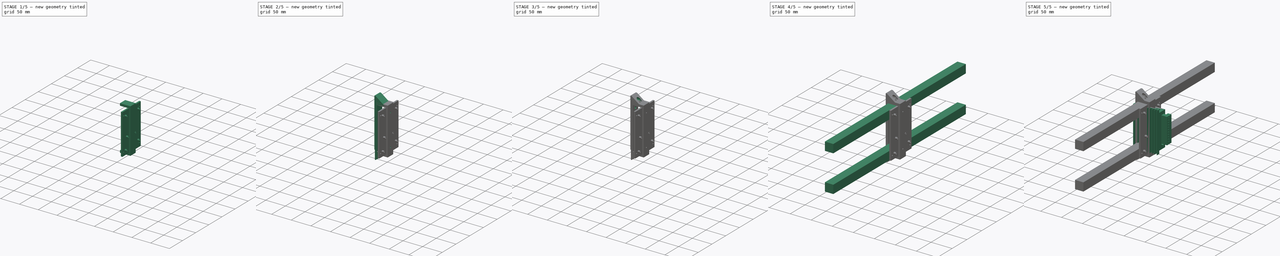
[diagram: build sequence overview — one tinted view per stage of 5, left to right]
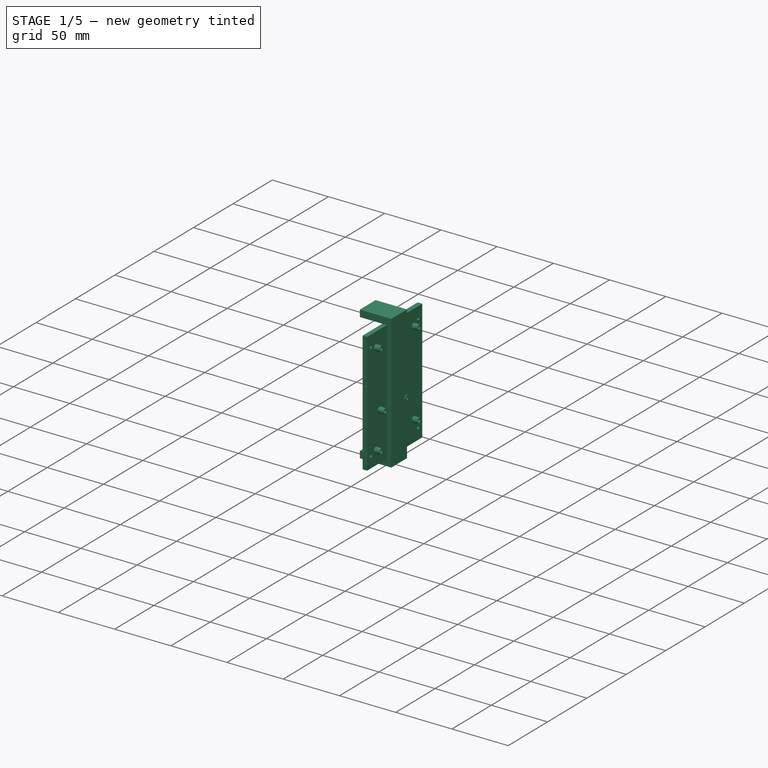
[diagram: stage 1 of 5 — iso view after this stage's code; geometry added in this stage tinted green]
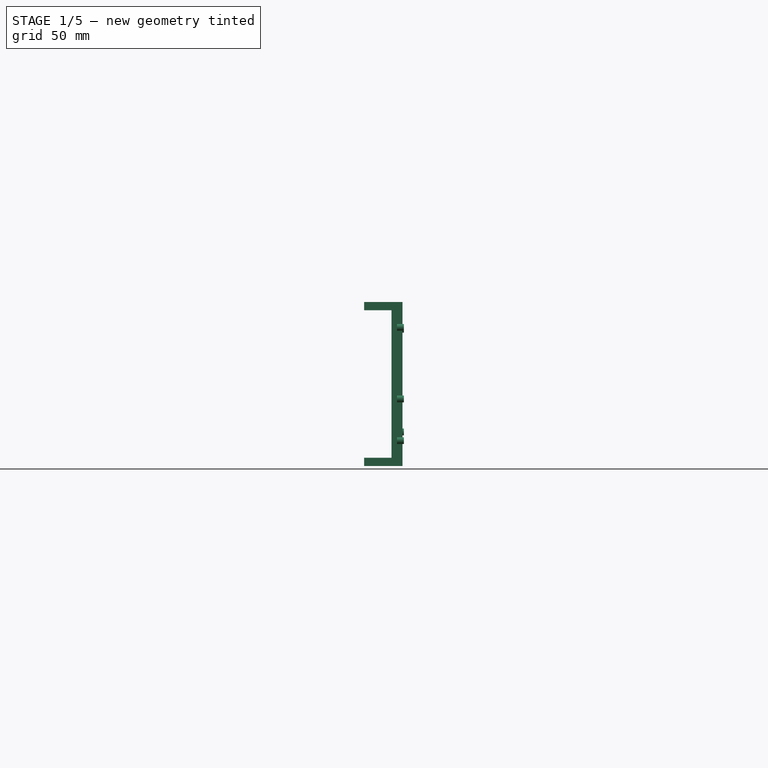
[diagram: stage 1 of 5 — front view after this stage's code; geometry added in this stage tinted green]
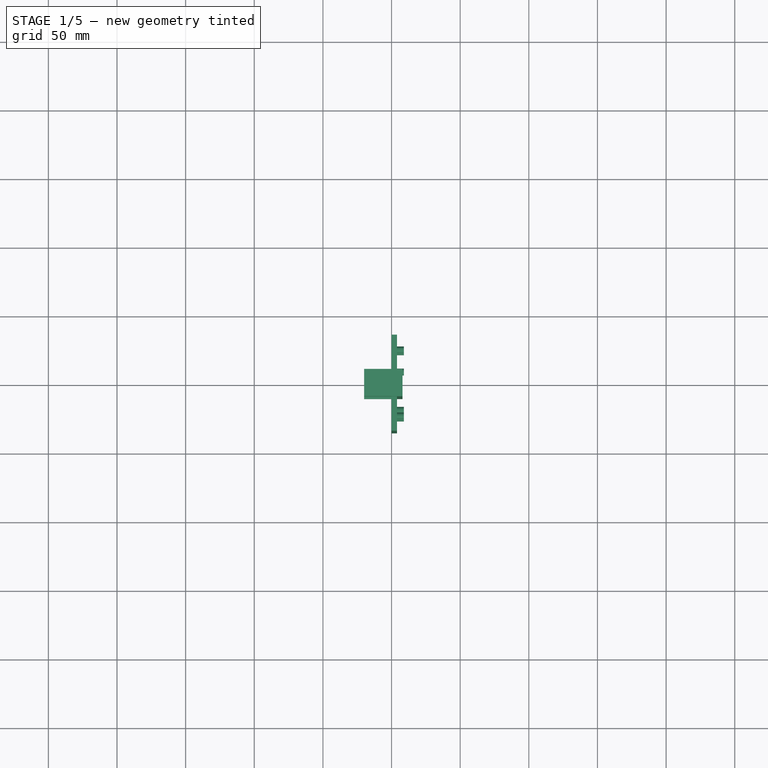
[diagram: stage 1 of 5 — top view after this stage's code; geometry added in this stage tinted green]
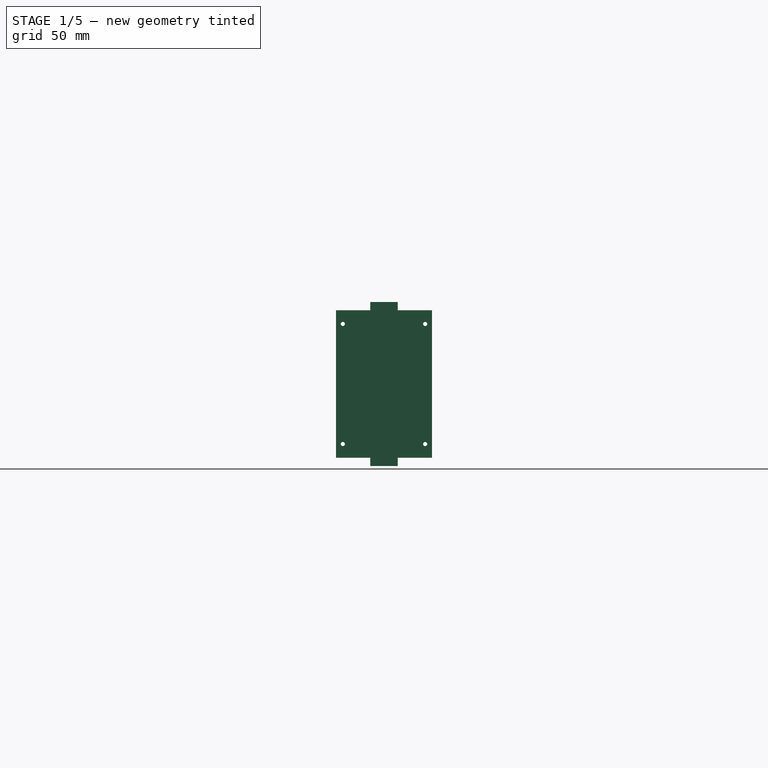
[diagram: stage 1 of 5 — right view after this stage's code; geometry added in this stage tinted green]
FCSTD DOCUMENT  (FreeCAD 0.19R23141 (Git))
Label: cnc_electronics_asm
License: All rights reserved
LicenseURL: http://en.wikipedia.org/wiki/All_rights_reserved
objects: Sketcher::SketchObject×13, PartDesign::Body×8, PartDesign::Pad×6, PartDesign::Hole×5, Part::Feature×4, PartDesign::FeatureBase×3, App::Part×2, PartDesign::Pocket×2, Part::Compound2×1, PartDesign::Mirrored×1
note: 55 computed .brp shape members not serialized (recipe doc carries the construction recipe); baked Part::Feature solids carry a one-line shape summary decoded from their .brp

FEATURE [PartDesign::Body] Body005  label="Bracket"
  Group = -> [Sketch002,Pad002,Sketch003,Hole,Sketch004,Hole001,Mirrored,Sketch005,Hole002,Sketch006,Hole003]
  Origin = -> Origin007
  Placement = pos=(0,250,0) rot=(0,0,1;0rad)
  Tip = -> Hole003
FEATURE [Sketcher::SketchObject] Sketch007
  MapMode = 5
  Placement = pos=(0,0,0) rot=(1,0,0;1.5708rad)
  Support = -> [XZ_Plane008]
  sketch-geometry (8):
    g0: LineSegment StartX=0 StartY=53.75 StartZ=0 EndX=-20 EndY=53.75 EndZ=0
    g1: LineSegment StartX=-20 StartY=53.75 StartZ=0 EndX=-20 EndY=59.75 EndZ=0
    g2: LineSegment StartX=-20 StartY=59.75 StartZ=0 EndX=8 EndY=59.75 EndZ=0
    g3: LineSegment StartX=8 StartY=59.75 StartZ=0 EndX=8 EndY=-59.75 EndZ=0
    g4: LineSegment StartX=8 StartY=-59.75 StartZ=0 EndX=-20 EndY=-59.75 EndZ=0
    g5: LineSegment StartX=-20 StartY=-59.75 StartZ=0 EndX=-20 EndY=-53.75 EndZ=0
    g6: LineSegment StartX=-20 StartY=-53.75 StartZ=0 EndX=0 EndY=-53.75 EndZ=0
    g7: LineSegment StartX=0 StartY=-53.75 StartZ=0 EndX=0 EndY=53.75 EndZ=0
  constraints (24):
    c: PointOnObject(g0,g-2)
    c: Horizontal(g0)
    c: Coincident(g0,g1)
    c: Vertical(g1)
    c: Coincident(g1,g2)
    c: Horizontal(g2)
    c: Coincident(g2,g3)
    c: Vertical(g3)
    c: Coincident(g3,g4)
    c: Horizontal(g4)
    c: Coincident(g4,g5)
    c: Vertical(g5)
    c: Coincident(g5,g6)
    c: PointOnObject(g6,g-2)
    c: Coincident(g6,g7)
    c: Coincident(g7,g0)
    c: Horizontal(g6)
    c: Equal(g0,g6)
    c: DistanceX(g6,g6) = 20
    c: Equal(g5,g1)
    c: DistanceY(g1,g1) = 6
    c: DistanceY(g-1,g0) = 53.75
    c: DistanceY(g6,g-1) = 53.75
    c: DistanceX(g6,g3) = 8
FEATURE [PartDesign::Pad] Pad003
  Direction = (1,1,1)
  Length = 20
  Length2 = 100
  Midplane = true
  Placement = pos=(0,0,0) rot=(1,0,0;1.5708rad)
  Profile = -> Sketch007
  Type = 0
FEATURE [PartDesign::Body] Body006  label="PSU_Mount"
  Group = -> [Sketch007,Pad003,Sketch008,Hole004,Sketch009,Pocket]
  Origin = -> Origin008
  Tip = -> Pocket
FEATURE [Sketcher::SketchObject] Sketch010
  MapMode = 5
  Placement = pos=(0,0,0) rot=(0.57735,0.57735,0.57735;2.0944rad)
  Support = -> [YZ_Plane009]
  sketch-geometry (18):
    g0: LineSegment StartX=-35 StartY=53.75 StartZ=0 EndX=35 EndY=53.75 EndZ=0
    g1: LineSegment StartX=35 StartY=53.75 StartZ=0 EndX=35 EndY=-53.75 EndZ=0
    g2: LineSegment StartX=35 StartY=-53.75 StartZ=0 EndX=-35 EndY=-53.75 EndZ=0
    g3: LineSegment StartX=-35 StartY=-53.75 StartZ=0 EndX=-35 EndY=53.75 EndZ=0
    g4: LineSegment [constr] StartX=-35 StartY=53.75 StartZ=0 EndX=0 EndY=0 EndZ=0
    g5: LineSegment [constr] StartX=0 StartY=0 StartZ=0 EndX=35 EndY=53.75 EndZ=0
    g6: LineSegment [constr] StartX=0 StartY=0 StartZ=0 EndX=-35 EndY=-53.75 EndZ=0
    g7: Circle CenterX=-30 CenterY=43.75 CenterZ=0 NormalX=0 NormalY=0 NormalZ=1 AngleXU=0 Radius=1.5
    g8: Circle CenterX=30 CenterY=43.75 CenterZ=0 NormalX=0 NormalY=0 NormalZ=1 AngleXU=0 Radius=1.5
    g9: Circle CenterX=-30 CenterY=-43.75 CenterZ=0 NormalX=0 NormalY=0 NormalZ=1 AngleXU=0 Radius=1.5
    g10: Circle CenterX=30 CenterY=-43.75 CenterZ=0 NormalX=0 NormalY=0 NormalZ=1 AngleXU=0 Radius=1.5
    g11: LineSegment [constr] StartX=30 StartY=-43.75 StartZ=0 EndX=-30 EndY=-43.75 EndZ=0
    g12: LineSegment [constr] StartX=-30 StartY=-43.75 StartZ=0 EndX=-30 EndY=43.75 EndZ=0
    g13: LineSegment [constr] StartX=-30 StartY=43.75 StartZ=0 EndX=30 EndY=43.75 EndZ=0
    g14: LineSegment [constr] StartX=30 StartY=43.75 StartZ=0 EndX=30 EndY=-43.75 EndZ=0
    g15: LineSegment [constr] StartX=-30 StartY=43.75 StartZ=0 EndX=0 EndY=0 EndZ=0
    g16: LineSegment [constr] StartX=0 StartY=0 StartZ=0 EndX=30 EndY=43.75 EndZ=0
    g17: LineSegment [constr] StartX=0 StartY=0 StartZ=0 EndX=-30 EndY=-43.75 EndZ=0
  constraints (44):
    c: Coincident(g0,g1)
    c: Coincident(g1,g2)
    c: Coincident(g2,g3)
    c: Coincident(g3,g0)
    c: Horizontal(g0)
    c: Horizontal(g2)
    c: Vertical(g1)
    c: Vertical(g3)
    c: DistanceX(g0,g0) = 70
    c: DistanceY(g3,g3) = 107.5
    c: Coincident(g0,g4)
    c: Coincident(g4,g-1)
    c: Coincident(g4,g5)
    c: Coincident(g5,g0)
    c: Coincident(g-1,g6)
    c: Coincident(g6,g2)
    c: Equal(g6,g4)
    c: Equal(g4,g5)
    c: Coincident(g11,g12)
    c: Coincident(g12,g13)
    c: Coincident(g13,g14)
    c: Coincident(g14,g11)
    c: Horizontal(g11)
    c: Horizontal(g13)
    c: Vertical(g12)
    c: Vertical(g14)
    c: Coincident(g11,g10)
    c: Coincident(g12,g7)
    c: Coincident(g8,g13)
    c: Coincident(g9,g11)
    c: Diameter(g9) = 3
    c: Equal(g9,g10)
    c: Equal(g9,g8)
    c: Equal(g9,g7)
    c: Coincident(g15,g7)
    c: Coincident(g15,g-1)
    c: Coincident(g15,g16)
    c: Coincident(g16,g8)
    c: Coincident(g-1,g17)
    c: Coincident(g17,g9)
    c: Equal(g15,g16)
    c: Equal(g16,g17)
    c: DistanceX(g13,g13) = 60
    c: DistanceY(g12,g12) = 87.5
FEATURE [PartDesign::Pad] Pad004
  Direction = (1,1,1)
  Length = 4
  Length2 = 100
  Placement = pos=(0,0,0) rot=(0.57735,0.57735,0.57735;2.0944rad)
  Profile = -> Sketch010
  Type = 0
FEATURE [Sketcher::SketchObject] Sketch011
  MapMode = 5
  Placement = pos=(4,-1.8e-15,1.3e-15) rot=(0.57735,0.57735,0.57735;2.0944rad)
  Support = -> [Pad004]
  sketch-geometry (13):
    g0: Circle CenterX=-24.1 CenterY=41.25 CenterZ=0 NormalX=0 NormalY=0 NormalZ=1 AngleXU=0 Radius=2.5
    g1: Circle CenterX=24.1 CenterY=39.95 CenterZ=0 NormalX=0 NormalY=0 NormalZ=1 AngleXU=0 Radius=2.5
    g2: Circle CenterX=-19 CenterY=-10.85 CenterZ=0 NormalX=0 NormalY=0 NormalZ=1 AngleXU=0 Radius=2.5
    g3: Circle CenterX=8.9 CenterY=-10.85 CenterZ=0 NormalX=0 NormalY=0 NormalZ=1 AngleXU=0 Radius=2.5
    g4: Circle CenterX=24.1 CenterY=-34.95 CenterZ=0 NormalX=0 NormalY=0 NormalZ=1 AngleXU=0 Radius=2.5
    g5: Circle CenterX=-24.1 CenterY=-41.25 CenterZ=0 NormalX=0 NormalY=0 NormalZ=1 AngleXU=0 Radius=2.5
    g6: LineSegment [constr] StartX=-19 StartY=-10.85 StartZ=0 EndX=8.9 EndY=-10.85 EndZ=0
    g7: LineSegment [constr] StartX=-24.1 StartY=41.25 StartZ=0 EndX=-24.1 EndY=-41.25 EndZ=0
    g8: LineSegment [constr] StartX=24.1 StartY=39.95 StartZ=0 EndX=24.1 EndY=-34.95 EndZ=0
    g9: LineSegment [constr] StartX=-24.1 StartY=-41.25 StartZ=0 EndX=0 EndY=-41.25 EndZ=0
    g10: LineSegment [constr] StartX=24.1 StartY=-34.95 StartZ=0 EndX=0 EndY=-34.95 EndZ=0
    g11: LineSegment [constr] StartX=-24.1 StartY=41.25 StartZ=0 EndX=0 EndY=0 EndZ=0
    g12: LineSegment [constr] StartX=0 StartY=0 StartZ=0 EndX=-24.1 EndY=-41.25 EndZ=0
  constraints (34):
    c: DistanceY(g1,g0) = 1.3
    c: DistanceY(g3,g1) = 50.8
    c: Coincident(g6,g2)
    c: Coincident(g6,g3)
    c: Horizontal(g6)
    c: DistanceX(g6,g6) = 27.9
    c: Coincident(g7,g0)
    c: Coincident(g7,g5)
    c: Vertical(g7)
    c: DistanceY(g4,g3) = 24.1
    c: DistanceX(g3,g1) = 15.2
    c: Coincident(g8,g1)
    c: Coincident(g8,g4)
    c: Vertical(g8)
    c: Diameter(g4) = 5
    c: Equal(g4,g3)
    c: Equal(g4,g2)
    c: Equal(g4,g5)
    c: Equal(g4,g0)
    c: Equal(g4,g1)
    c: DistanceX(g0,g2) = 5.1
    c: DistanceY(g7,g7) = 82.5
    c: Coincident(g9,g5)
    c: PointOnObject(g9,g-2)
    c: Horizontal(g9)
    c: Coincident(g10,g4)
    c: PointOnObject(g10,g-2)
    c: Horizontal(g10)
    c: Equal(g10,g9)
    c: Coincident(g11,g0)
    c: Coincident(g11,g-1)
    c: Coincident(g12,g-1)
    c: Coincident(g12,g5)
    c: Equal(g12,g11)
FEATURE [PartDesign::Pad] Pad005
  BaseFeature = -> Pad004
  Direction = (1,1,1)
  Length = 5
  Length2 = 100
  Placement = pos=(0,0,0) rot=(0.57735,0.57735,0.57735;2.0944rad)
  Profile = -> Sketch011
  Type = 0
FEATURE [Sketcher::SketchObject] Sketch012
  ExternalGeometry = -> [Pad005]
  MapMode = 5
  Placement = pos=(9,-5.7e-15,5.6e-15) rot=(0.57735,0.57735,0.57735;2.0944rad)
  Support = -> [Pad005]
  sketch-geometry (6):
    g0: Circle CenterX=-24.1 CenterY=41.25 CenterZ=0 NormalX=0 NormalY=0 NormalZ=1 AngleXU=0 Radius=1.5
    g1: Circle CenterX=24.1 CenterY=39.95 CenterZ=0 NormalX=0 NormalY=0 NormalZ=1 AngleXU=0 Radius=1.5
    g2: Circle CenterX=-19 CenterY=-10.85 CenterZ=0 NormalX=0 NormalY=0 NormalZ=1 AngleXU=0 Radius=1.5
    g3: Circle CenterX=8.9 CenterY=-10.85 CenterZ=0 NormalX=0 NormalY=0 NormalZ=1 AngleXU=0 Radius=1.5
    g4: Circle CenterX=24.1 CenterY=-34.95 CenterZ=0 NormalX=0 NormalY=0 NormalZ=1 AngleXU=0 Radius=1.5
    g5: Circle CenterX=-24.1 CenterY=-41.25 CenterZ=0 NormalX=0 NormalY=0 NormalZ=1 AngleXU=0 Radius=1.5
  constraints (12):
    c: Coincident(g0,g-3)
    c: Coincident(g1,g-4)
    c: Coincident(g2,g-6)
    c: Coincident(g3,g-5)
    c: Coincident(g4,g-8)
    c: Coincident(g5,g-7)
    c: Equal(g5,g2)
    c: Equal(g2,g3)
    c: Equal(g3,g4)
    c: Equal(g4,g1)
    c: Equal(g1,g0)
    c: Diameter(g0) = 3
FEATURE [PartDesign::Pocket] Pocket001
  BaseFeature = -> Pad005
  Length = 4.5
  Length2 = 100
  Placement = pos=(0,0,0) rot=(0.57735,0.57735,0.57735;2.0944rad)
  Profile = -> Sketch012
  Type = 0
FEATURE [PartDesign::Body] Body007  label="Mega_Mount"
  Group = -> [Sketch010,Pad004,Sketch011,Pad005,Sketch012,Pocket001]
  Origin = -> Origin009
  Tip = -> Pocket001
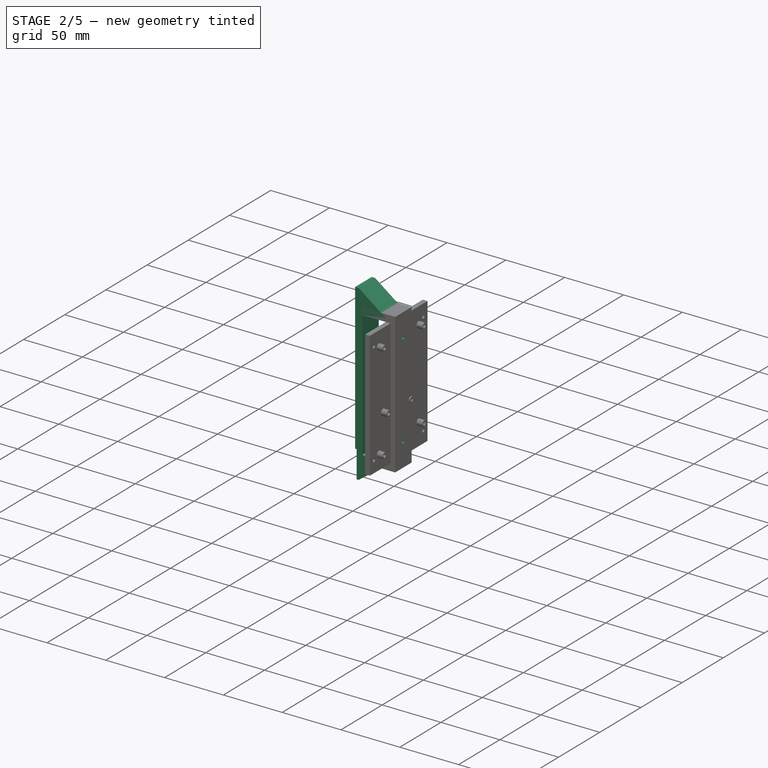
[diagram: stage 2 of 5 — iso view after this stage's code; geometry added in this stage tinted green]
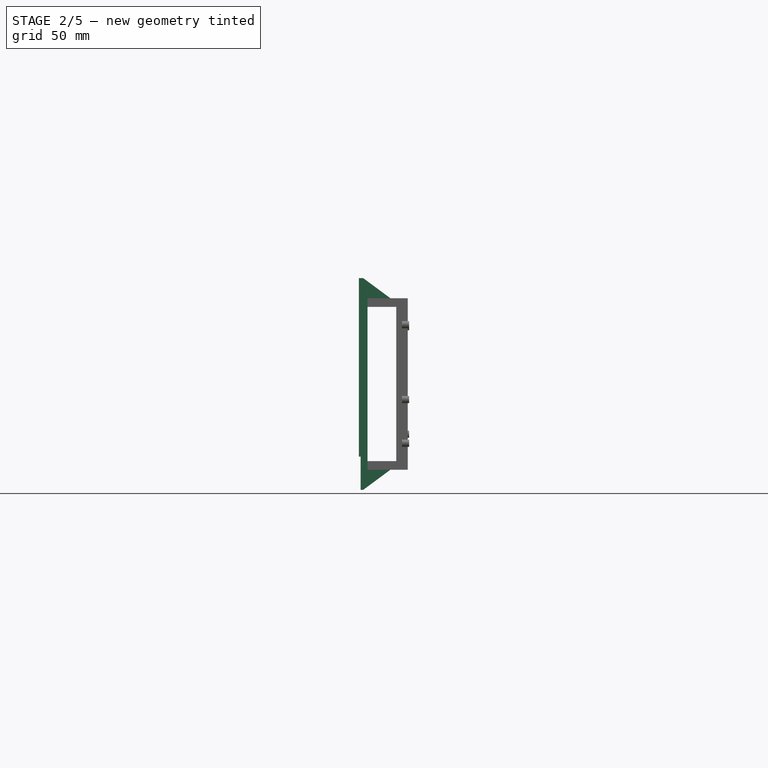
[diagram: stage 2 of 5 — front view after this stage's code; geometry added in this stage tinted green]
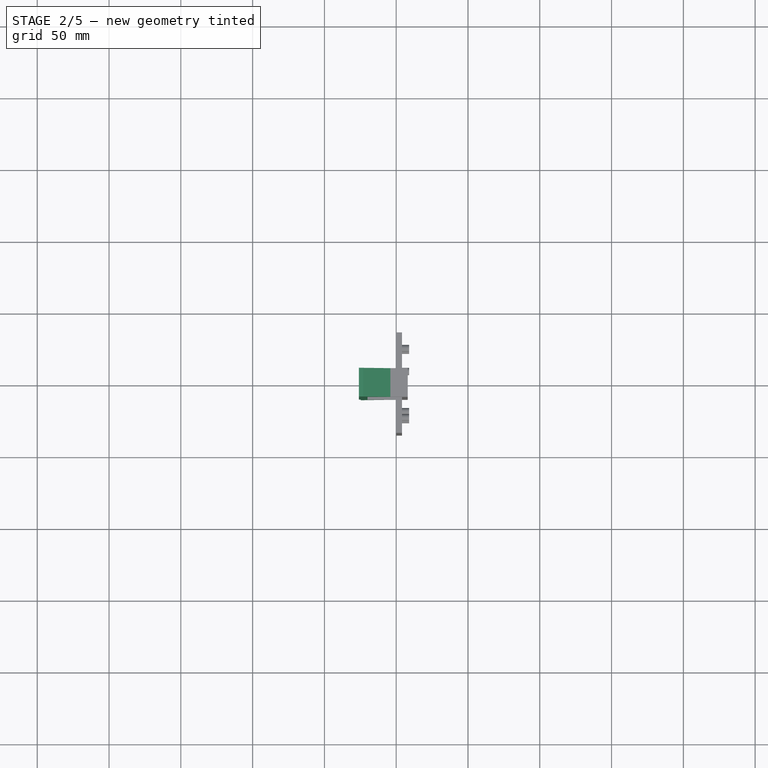
[diagram: stage 2 of 5 — top view after this stage's code; geometry added in this stage tinted green]
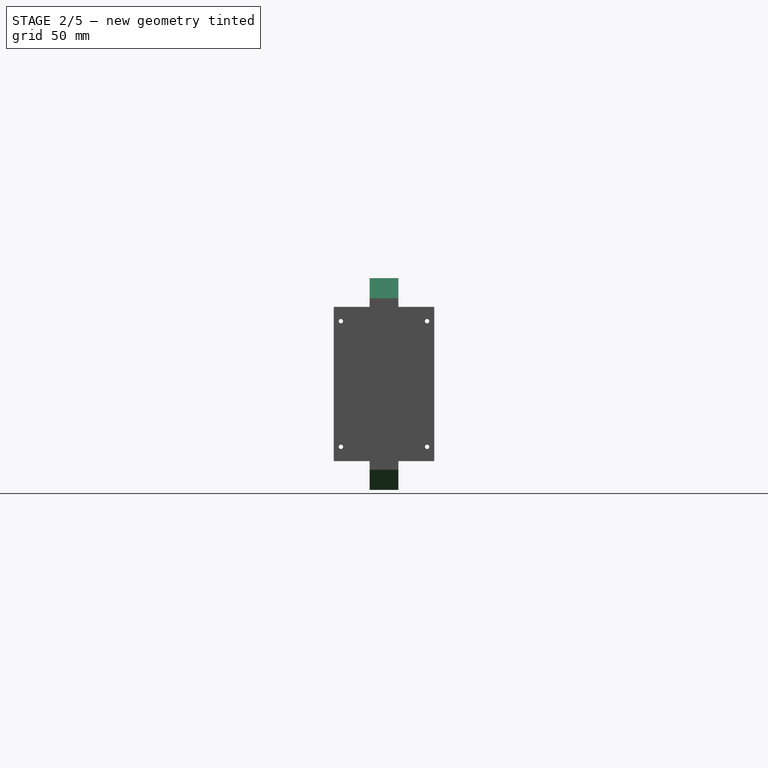
[diagram: stage 2 of 5 — right view after this stage's code; geometry added in this stage tinted green]
FEATURE [PartDesign::Body] Body004
  Group = -> [Sketch001,Pad001]
  Origin = -> Origin006
  Tip = -> Pad001
FEATURE [Sketcher::SketchObject] Sketch002
  MapMode = 5
  Placement = pos=(0,0,0) rot=(1,0,0;1.5708rad)
  Support = -> [XZ_Plane007]
  sketch-geometry (18):
    g0: LineSegment [constr] StartX=0 StartY=63.75 StartZ=0 EndX=-100 EndY=63.75 EndZ=0
    g1: LineSegment [constr] StartX=0 StartY=-63.75 StartZ=0 EndX=-100 EndY=-63.75 EndZ=0
    g2: LineSegment [constr] StartX=-100 StartY=-63.75 StartZ=0 EndX=0 EndY=0 EndZ=0
    g3: LineSegment [constr] StartX=0 StartY=0 StartZ=0 EndX=-100 EndY=63.75 EndZ=0
    g4: LineSegment StartX=0 StartY=53.75 StartZ=0 EndX=-20 EndY=53.75 EndZ=0
    g5: LineSegment StartX=-20 StartY=53.75 StartZ=0 EndX=-20 EndY=-53.75 EndZ=0
    g6: LineSegment StartX=-20 StartY=-53.75 StartZ=0 EndX=0 EndY=-53.75 EndZ=0
    g7: LineSegment StartX=-23 StartY=73.75 StartZ=0 EndX=-26 EndY=73.75 EndZ=0
    g8: LineSegment [constr] StartX=-26 StartY=73.75 StartZ=0 EndX=-26 EndY=-73.75 EndZ=0
    g9: LineSegment [constr] StartX=-26 StartY=-73.75 StartZ=0 EndX=-23 EndY=-73.75 EndZ=0
    g10: LineSegment StartX=-26 StartY=-50.55 StartZ=0 EndX=-24.8 EndY=-50.55 EndZ=0
    g11: LineSegment StartX=-24.8 StartY=-50.55 StartZ=0 EndX=-24.8 EndY=-73.75 EndZ=0
    g12: LineSegment StartX=-23 StartY=-73.75 StartZ=0 EndX=-24.8 EndY=-73.75 EndZ=0
    g13: LineSegment StartX=-26 StartY=-50.55 StartZ=0 EndX=-26 EndY=73.75 EndZ=0
    g14: LineSegment StartX=0 StartY=-53.75 StartZ=0 EndX=0 EndY=-56.75 EndZ=0
    g15: LineSegment StartX=0 StartY=-56.75 StartZ=0 EndX=-23 EndY=-73.75 EndZ=0
    g16: LineSegment StartX=-23 StartY=73.75 StartZ=0 EndX=0 EndY=56.75 EndZ=0
    g17: LineSegment StartX=0 StartY=56.75 StartZ=0 EndX=0 EndY=53.75 EndZ=0
  constraints (53):
    c: PointOnObject(g0,g-2)
    c: Horizontal(g0)
    c: PointOnObject(g1,g-2)
    c: Horizontal(g1)
    c: Coincident(g1,g2)
    c: Coincident(g2,g-1)
    c: Coincident(g2,g3)
    c: Coincident(g3,g0)
    c: Equal(g3,g2)
    c: Equal(g1,g0)
    c: DistanceY(g1,g0) = 127.5
    c: PointOnObject(g4,g-2)
    c: Horizontal(g4)
    c: Coincident(g4,g5)
    c: Vertical(g5)
    c: Coincident(g5,g6)
    c: PointOnObject(g6,g-2)
    c: Horizontal(g6)
    c: Coincident(g7,g8)
    c: Vertical(g8)
    c: Coincident(g8,g9)
    c: Horizontal(g9)
    c: Equal(g7,g9)
    c: Horizontal(g7)
    c: DistanceX(g4,g4) = 20
    c: DistanceY(g4,g0) = 10
    c: DistanceY(g1,g6) = 10
    c: DistanceY(g9,g1) = 10
    c: PointOnObject(g10,g8)
    c: Coincident(g10,g11)
    c: Vertical(g11)
    c: Horizontal(g10)
    c: DistanceX(g10,g10) = 1.2
    c: DistanceY(g1,g10) = 13.2
    c: DistanceX(g7,g7) = 3
    c: DistanceX(g7,g4) = 3
    c: PointOnObject(g12,g9)
    c: Coincident(g12,g11)
    c: Coincident(g13,g10)
    c: Coincident(g13,g7)
    c: DistanceX(g0,g0) = 100
    c: Coincident(g6,g14)
    c: Coincident(g14,g15)
    c: Coincident(g15,g12)
    c: Coincident(g12,g9)
    c: PointOnObject(g14,g-2)
    c: DistanceY(g14,g14) = 3
    c: Coincident(g7,g16)
    c: Coincident(g16,g17)
    c: Coincident(g17,g4)
    c: PointOnObject(g16,g-2)
    c: Equal(g17,g14)
    c: DistanceY(g0,g7) = 10
FEATURE [PartDesign::Pad] Pad002
  Direction = (1,1,1)
  Length = 20
  Length2 = 100
  Midplane = true
  Placement = pos=(0,0,0) rot=(1,0,0;1.5708rad)
  Profile = -> Sketch002
  Type = 0
FEATURE [Sketcher::SketchObject] Sketch008
  MapMode = 5
  Placement = pos=(0,0,0) rot=(0.707107,0,-0.707107;3.14159rad)
  Support = -> [Pad003]
  sketch-geometry (2):
    g0: Circle CenterX=-40 CenterY=0 CenterZ=0 NormalX=0 NormalY=0 NormalZ=1 AngleXU=0 Radius=3
    g1: Circle CenterX=40 CenterY=0 CenterZ=0 NormalX=0 NormalY=0 NormalZ=1 AngleXU=0 Radius=3
  constraints (6):
    c: PointOnObject(g0,g-1)
    c: PointOnObject(g1,g-1)
    c: DistanceX(g0,g-1) = 40
    c: DistanceX(g-1,g1) = 40
    c: Equal(g1,g0)
    c: Diameter(g0) = 6
FEATURE [PartDesign::Hole] Hole004
  BaseFeature = -> Pad003
  Depth = 25
  DepthType = 0
  Diameter = 3
  DrillPoint = 1
  DrillPointAngle = 118
  HoleCutCountersinkAngle = 90
  HoleCutDepth = 4
  HoleCutDiameter = 6
  HoleCutType = 1
  ModelActualThread = false
  Placement = pos=(0,0,0) rot=(1,0,0;1.5708rad)
  Profile = -> Sketch008
  Tapered = false
  TaperedAngle = 90
  ThreadAngle = 0
  ThreadClass = 0
  ThreadCutOffInner = 0
  ThreadCutOffOuter = 0
  ThreadDirection = 0
  ThreadFit = 0
  ThreadPitch = 0
  ThreadSize = 0
  ThreadType = 0
  Threaded = false
FEATURE [Sketcher::SketchObject] Sketch009
  MapMode = 5
  Placement = pos=(0,3.56e-14,53.75) rot=(1,0,0;3.14159rad)
  Support = -> [Hole004]
  sketch-geometry (1):
    g0: Circle CenterX=-10 CenterY=0 CenterZ=0 NormalX=0 NormalY=0 NormalZ=1 AngleXU=0 Radius=2.5
  constraints (3):
    c: PointOnObject(g0,g-1)
    c: DistanceX(g0,g-1) = 10
    c: Diameter(g0) = 5
FEATURE [PartDesign::Pocket] Pocket
  BaseFeature = -> Hole004
  Length = 5
  Length2 = 100
  Midplane = true
  Placement = pos=(0,0,0) rot=(1,0,0;1.5708rad)
  Profile = -> Sketch009
  Type = 1
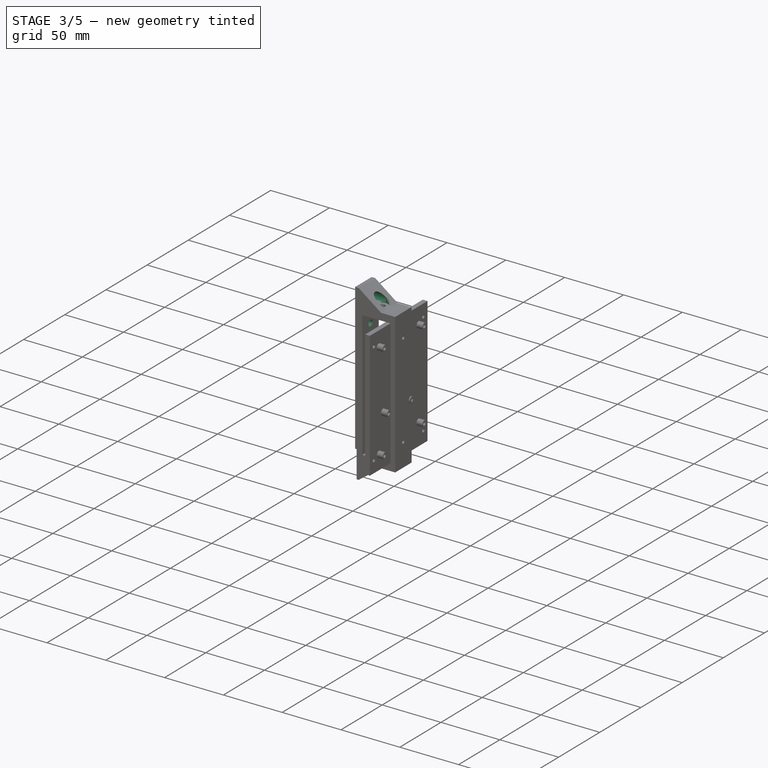
[diagram: stage 3 of 5 — iso view after this stage's code; geometry added in this stage tinted green]
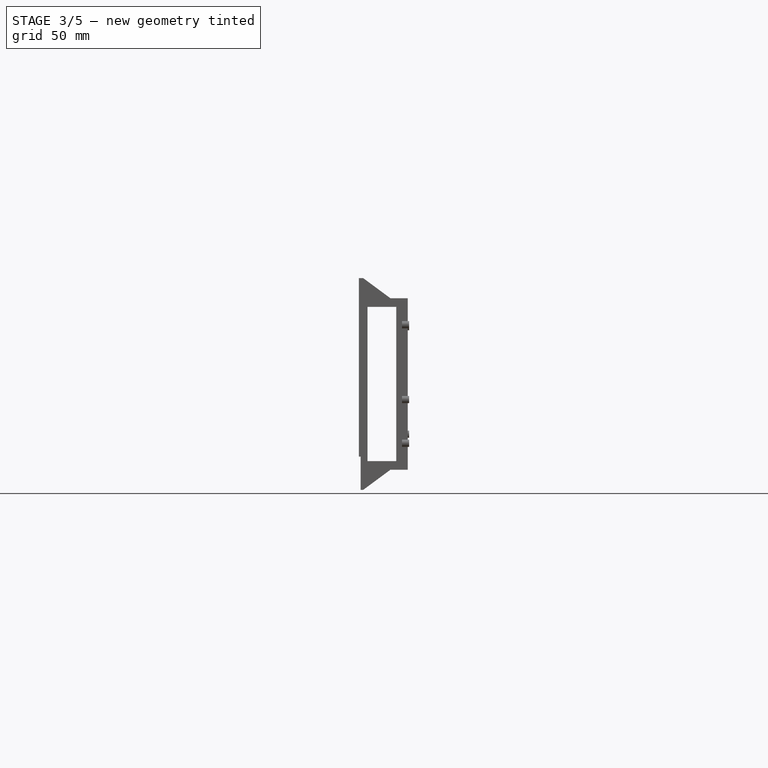
[diagram: stage 3 of 5 — front view after this stage's code; geometry added in this stage tinted green]
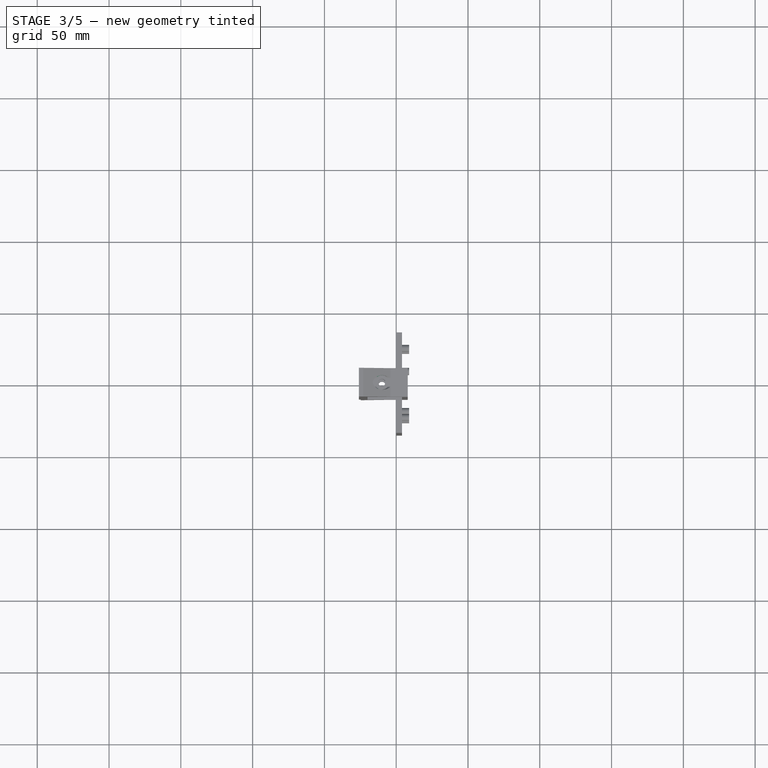
[diagram: stage 3 of 5 — top view after this stage's code; geometry added in this stage tinted green]
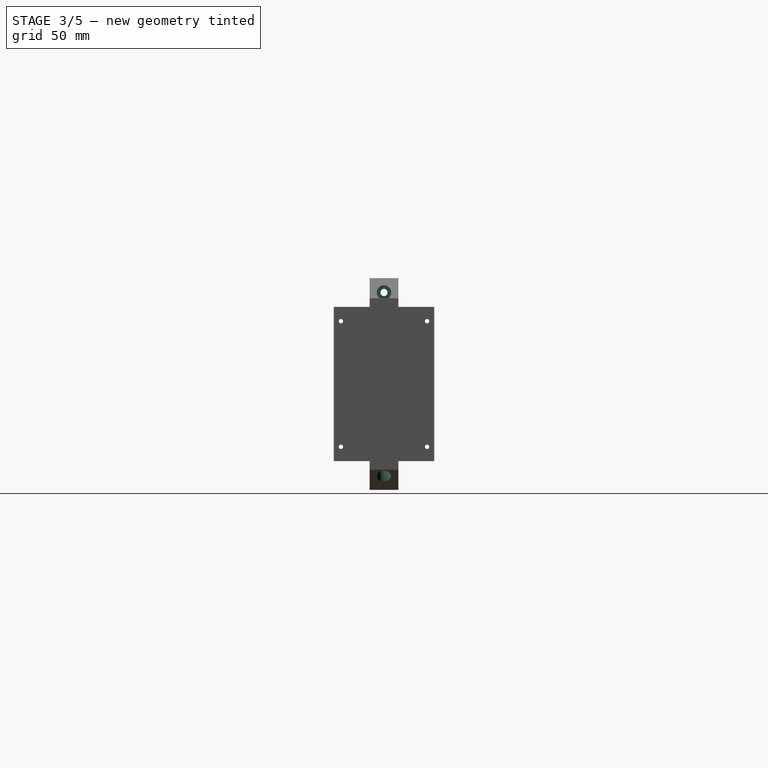
[diagram: stage 3 of 5 — right view after this stage's code; geometry added in this stage tinted green]
FEATURE [Sketcher::SketchObject] Sketch003
  MapMode = 5
  Placement = pos=(-26,0,-8e-16) rot=(0.707107,0,-0.707107;3.14159rad)
  Support = -> [Pad002]
  sketch-geometry (4):
    g0: Circle CenterX=-43.75 CenterY=0 CenterZ=0 NormalX=0 NormalY=0 NormalZ=1 AngleXU=0 Radius=2.5
    g1: Circle CenterX=43.75 CenterY=0 CenterZ=0 NormalX=0 NormalY=0 NormalZ=1 AngleXU=0 Radius=2.5
    g2: LineSegment [constr] StartX=-43.75 StartY=0 StartZ=0 EndX=0 EndY=0 EndZ=0
    g3: LineSegment [constr] StartX=0 StartY=0 StartZ=0 EndX=43.75 EndY=0 EndZ=0
  constraints (10):
    c: PointOnObject(g0,g-1)
    c: PointOnObject(g1,g-1)
    c: Coincident(g2,g0)
    c: Coincident(g2,g3)
    c: Coincident(g3,g1)
    c: Coincident(g2,g-1)
    c: Equal(g3,g2)
    c: DistanceX(g0,g1) = 87.5
    c: Diameter(g1) = 5
    c: Equal(g1,g0)
FEATURE [PartDesign::Hole] Hole
  BaseFeature = -> Pad002
  Depth = 25
  DepthType = 1
  Diameter = 5
  DrillPoint = 0
  DrillPointAngle = 118
  HoleCutCountersinkAngle = 90
  HoleCutDepth = 2.5
  HoleCutDiameter = 10
  HoleCutType = 1
  ModelActualThread = false
  Placement = pos=(0,0,0) rot=(1,0,0;1.5708rad)
  Profile = -> Sketch003
  Tapered = false
  TaperedAngle = 90
  ThreadAngle = 0
  ThreadClass = 0
  ThreadCutOffInner = 0
  ThreadCutOffOuter = 0
  ThreadDirection = 0
  ThreadFit = 0
  ThreadPitch = 0
  ThreadSize = 0
  ThreadType = 0
  Threaded = false
FEATURE [Sketcher::SketchObject] Sketch004
  AttachmentOffset = pos=(0,0,100) rot=(0,0,1;0rad)
  MapMode = 5
  Placement = pos=(0,0,100) rot=(0,0,1;0rad)
  Support = -> [XY_Plane007]
  sketch-geometry (1):
    g0: Circle CenterX=-10 CenterY=0 CenterZ=0 NormalX=0 NormalY=0 NormalZ=1 AngleXU=0 Radius=2.5
  constraints (3):
    c: PointOnObject(g0,g-1)
    c: DistanceX(g0,g-1) = 10
    c: Diameter(g0) = 5
FEATURE [PartDesign::Hole] Hole001
  BaseFeature = -> Hole
  Depth = 100
  DepthType = 0
  Diameter = 5
  DrillPoint = 0
  DrillPointAngle = 118
  HoleCutCountersinkAngle = 90
  HoleCutDepth = 44.25
  HoleCutDiameter = 10
  HoleCutType = 1
  ModelActualThread = false
  Placement = pos=(0,0,0) rot=(1,0,0;1.5708rad)
  Profile = -> Sketch004
  Tapered = false
  TaperedAngle = 90
  ThreadAngle = 0
  ThreadClass = 0
  ThreadCutOffInner = 0
  ThreadCutOffOuter = 0
  ThreadDirection = 0
  ThreadFit = 0
  ThreadPitch = 0
  ThreadSize = 0
  ThreadType = 0
  Threaded = false
FEATURE [PartDesign::Mirrored] Mirrored
  BaseFeature = -> Hole001
  MirrorPlane = -> XY_Plane007
  Originals = -> [Hole001]
  Placement = pos=(0,0,0) rot=(1,0,0;1.5708rad)
FEATURE [Sketcher::SketchObject] Sketch005
  MapMode = 5
  Placement = pos=(0,0,0) rot=(0.57735,0.57735,0.57735;2.0944rad)
  Support = -> [YZ_Plane007]
  sketch-geometry (4):
    g0: Circle CenterX=0 CenterY=63.75 CenterZ=0 NormalX=0 NormalY=0 NormalZ=1 AngleXU=0 Radius=5
    g1: Circle [constr] CenterX=0 CenterY=-63.75 CenterZ=0 NormalX=0 NormalY=0 NormalZ=1 AngleXU=0 Radius=5
    g2: LineSegment [constr] StartX=0 StartY=63.75 StartZ=0 EndX=0 EndY=0 EndZ=0
    g3: LineSegment [constr] StartX=0 StartY=0 StartZ=0 EndX=0 EndY=-63.75 EndZ=0
  constraints (10):
    c: PointOnObject(g0,g-2)
    c: PointOnObject(g1,g-2)
    c: Diameter(g1) = 10
    c: Equal(g1,g0)
    c: Coincident(g2,g0)
    c: Coincident(g2,g3)
    c: Coincident(g3,g1)
    c: Coincident(g-1,g2)
    c: Equal(g2,g3)
    c: DistanceY(g1,g0) = 127.5
FEATURE [PartDesign::Hole] Hole002
  BaseFeature = -> Mirrored
  Depth = 25
  DepthType = 1
  Diameter = 5
  DrillPoint = 1
  DrillPointAngle = 118
  HoleCutCountersinkAngle = 90
  HoleCutDepth = 21
  HoleCutDiameter = 10
  HoleCutType = 1
  ModelActualThread = false
  Placement = pos=(0,0,0) rot=(1,0,0;1.5708rad)
  Profile = -> Sketch005
  Tapered = false
  TaperedAngle = 90
  ThreadAngle = 0
  ThreadClass = 0
  ThreadCutOffInner = 0
  ThreadCutOffOuter = 0
  ThreadDirection = 0
  ThreadFit = 0
  ThreadPitch = 0
  ThreadSize = 0
  ThreadType = 0
  Threaded = false
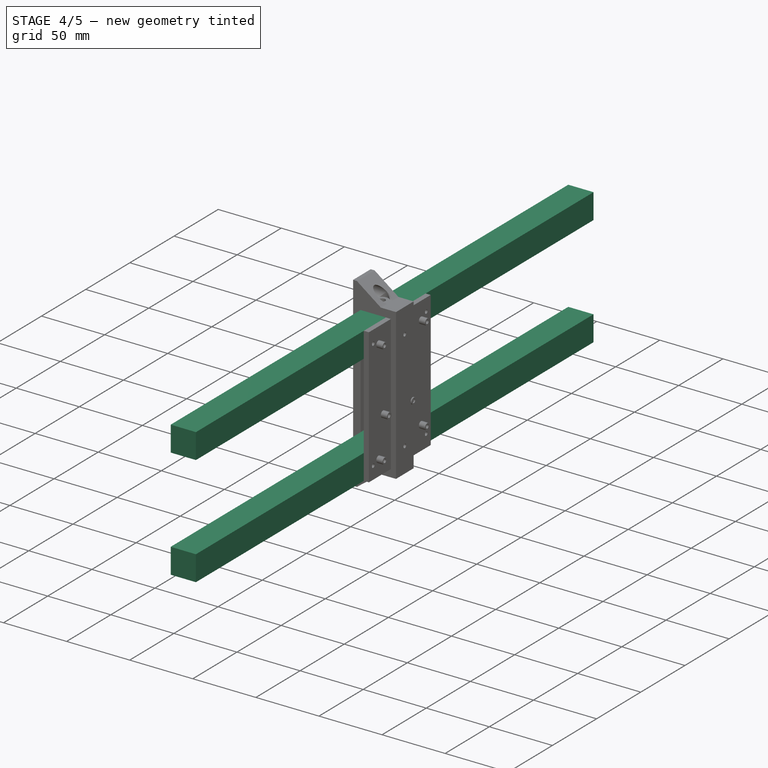
[diagram: stage 4 of 5 — iso view after this stage's code; geometry added in this stage tinted green]
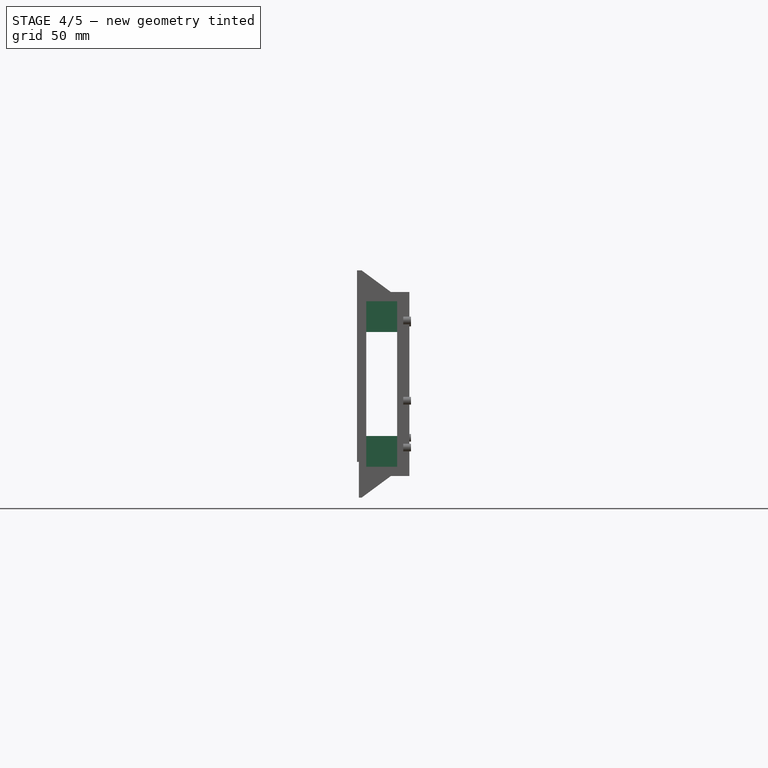
[diagram: stage 4 of 5 — front view after this stage's code; geometry added in this stage tinted green]
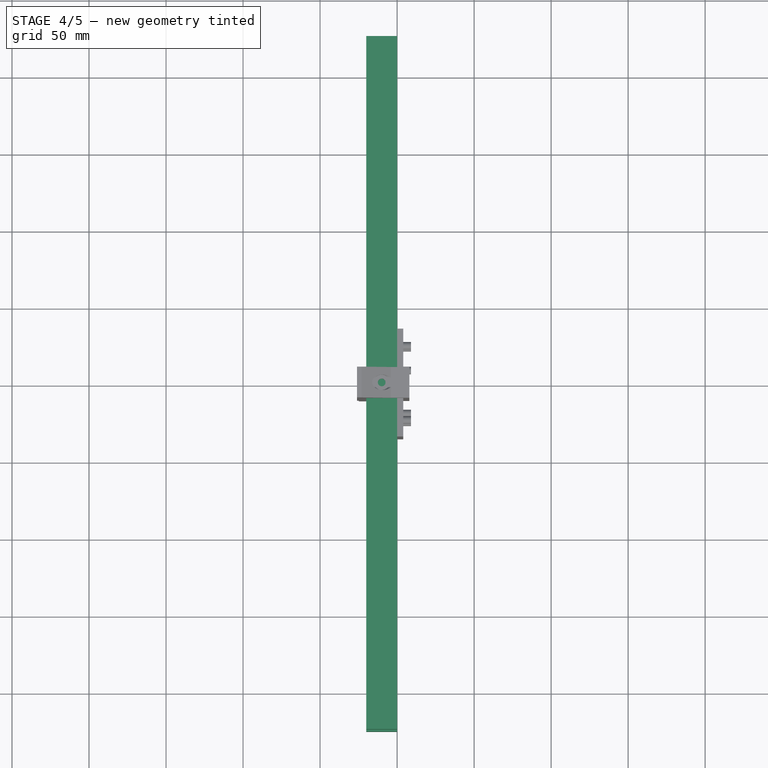
[diagram: stage 4 of 5 — top view after this stage's code; geometry added in this stage tinted green]
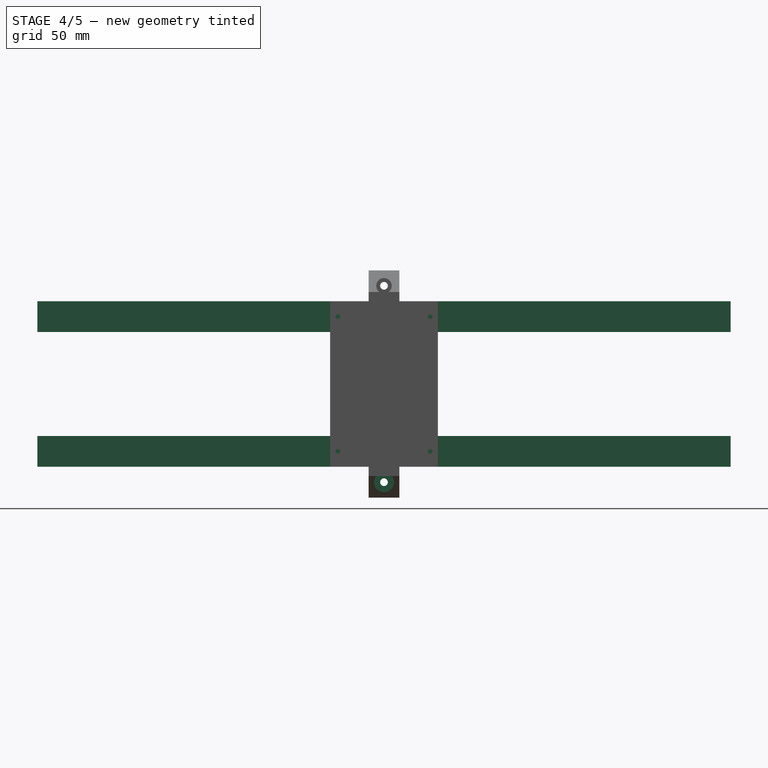
[diagram: stage 4 of 5 — right view after this stage's code; geometry added in this stage tinted green]
FEATURE [PartDesign::Body] Body002
  BaseFeature = -> Compound
  Group = -> [Clone002]
  Origin = -> Origin002
  Placement = pos=(0,105,0) rot=(0,0,1;0rad)
  Tip = -> Clone002
FEATURE [Part::Feature] Solid003  label="24 Volt Power Supply 13A MeanWell Amazon"
  Placement = pos=(0,130,0) rot=(0,0,-1;1.5708rad)
  shape: bbox 50.8 x 225 x 114.3 mm, 658 faces (baked)
FEATURE [App::Part] Part  label="Driver"
  Group = -> [Solid002,Solid001,Solid,Compound,Body,Body001,Body002]
  Origin = -> Origin003
  Placement = pos=(28.65,100,0) rot=(0,0,1;0rad)
FEATURE [App::Part] Part001  label="PSU"
  Group = -> [Solid003]
  Origin = -> Origin004
  Placement = pos=(10,50,0) rot=(1,0,0;3.14159rad)
FEATURE [Sketcher::SketchObject] Sketch
  MapMode = 5
  Placement = pos=(0,0,0) rot=(1,0,0;1.5708rad)
  Support = -> [XZ_Plane005]
  sketch-geometry (4):
    g0: LineSegment StartX=0 StartY=53.75 StartZ=0 EndX=-20 EndY=53.75 EndZ=0
    g1: LineSegment StartX=-20 StartY=53.75 StartZ=0 EndX=-20 EndY=33.75 EndZ=0
    g2: LineSegment StartX=-20 StartY=33.75 StartZ=0 EndX=0 EndY=33.75 EndZ=0
    g3: LineSegment StartX=0 StartY=33.75 StartZ=0 EndX=0 EndY=53.75 EndZ=0
  constraints (12):
    c: Coincident(g0,g1)
    c: Coincident(g1,g2)
    c: Coincident(g2,g3)
    c: Coincident(g3,g0)
    c: Horizontal(g0)
    c: Horizontal(g2)
    c: Vertical(g1)
    c: Vertical(g3)
    c: PointOnObject(g0,g-2)
    c: Equal(g2,g1)
    c: DistanceX(g0,g0) = 20
    c: DistanceY(g-1,g1) = 33.75
FEATURE [PartDesign::Pad] Pad
  Direction = (1,1,1)
  Length = 450
  Length2 = 100
  Midplane = true
  Placement = pos=(0,0,0) rot=(1,0,0;1.5708rad)
  Profile = -> Sketch
  Type = 0
FEATURE [PartDesign::Body] Body003
  Group = -> [Sketch,Pad]
  Origin = -> Origin005
  Tip = -> Pad
FEATURE [Sketcher::SketchObject] Sketch001
  MapMode = 5
  Placement = pos=(0,0,0) rot=(1,0,0;1.5708rad)
  Support = -> [XZ_Plane006]
  sketch-geometry (4):
    g0: LineSegment StartX=0 StartY=-33.75 StartZ=0 EndX=-20 EndY=-33.75 EndZ=0
    g1: LineSegment StartX=-20 StartY=-33.75 StartZ=0 EndX=-20 EndY=-53.75 EndZ=0
    g2: LineSegment StartX=-20 StartY=-53.75 StartZ=0 EndX=0 EndY=-53.75 EndZ=0
    g3: LineSegment StartX=0 StartY=-53.75 StartZ=0 EndX=0 EndY=-33.75 EndZ=0
  constraints (12):
    c: Coincident(g0,g1)
    c: Coincident(g1,g2)
    c: Coincident(g2,g3)
    c: Coincident(g3,g0)
    c: Horizontal(g0)
    c: Horizontal(g2)
    c: Vertical(g1)
    c: Vertical(g3)
    c: PointOnObject(g0,g-2)
    c: Equal(g2,g1)
    c: DistanceX(g0,g0) = 20
    c: DistanceY(g0,g-1) = 33.75
FEATURE [PartDesign::Pad] Pad001
  Direction = (1,1,1)
  Length = 450
  Length2 = 100
  Midplane = true
  Placement = pos=(0,0,0) rot=(1,0,0;1.5708rad)
  Profile = -> Sketch001
  Type = 0
FEATURE [Sketcher::SketchObject] Sketch006
  MapMode = 5
  Placement = pos=(0,0,0) rot=(0.57735,0.57735,0.57735;2.0944rad)
  Support = -> [YZ_Plane007]
  sketch-geometry (1):
    g0: Circle CenterX=0 CenterY=-63.75 CenterZ=0 NormalX=0 NormalY=0 NormalZ=1 AngleXU=0 Radius=5
  constraints (3):
    c: PointOnObject(g0,g-2)
    c: DistanceY(g0,g-1) = 63.75
    c: Diameter(g0) = 10
FEATURE [PartDesign::Hole] Hole003
  BaseFeature = -> Hole002
  Depth = 21
  DepthType = 1
  Diameter = 5
  DrillPoint = 1
  DrillPointAngle = 118
  HoleCutCountersinkAngle = 90
  HoleCutDepth = 23
  HoleCutDiameter = 13
  HoleCutType = 1
  ModelActualThread = false
  Placement = pos=(0,0,0) rot=(1,0,0;1.5708rad)
  Profile = -> Sketch006
  Tapered = false
  TaperedAngle = 90
  ThreadAngle = 0
  ThreadClass = 0
  ThreadCutOffInner = 0
  ThreadCutOffOuter = 0
  ThreadDirection = 0
  ThreadFit = 0
  ThreadPitch = 0
  ThreadSize = 0
  ThreadType = 0
  Threaded = false
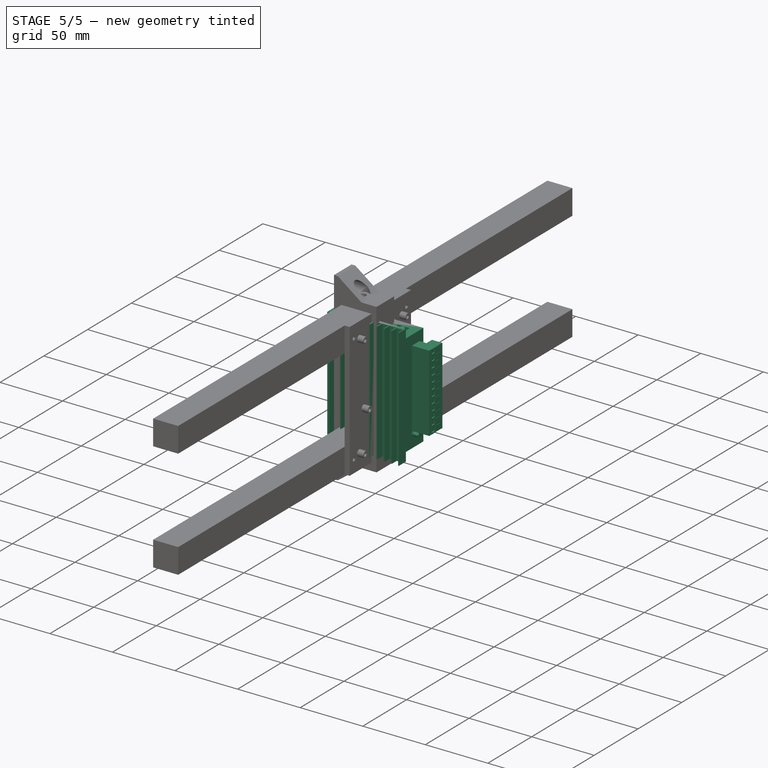
[diagram: stage 5 of 5 — iso view after this stage's code; geometry added in this stage tinted green]
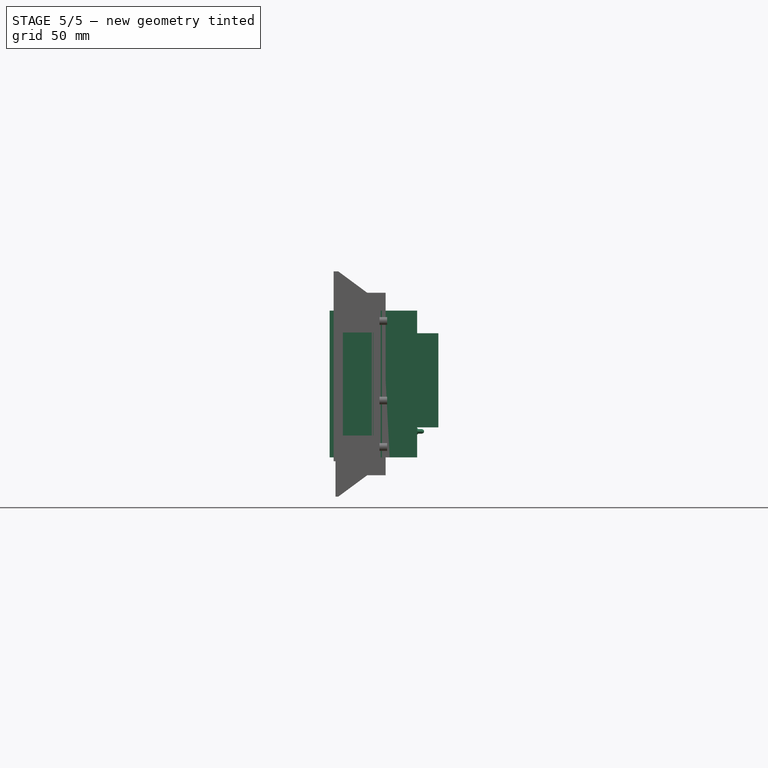
[diagram: stage 5 of 5 — front view after this stage's code; geometry added in this stage tinted green]
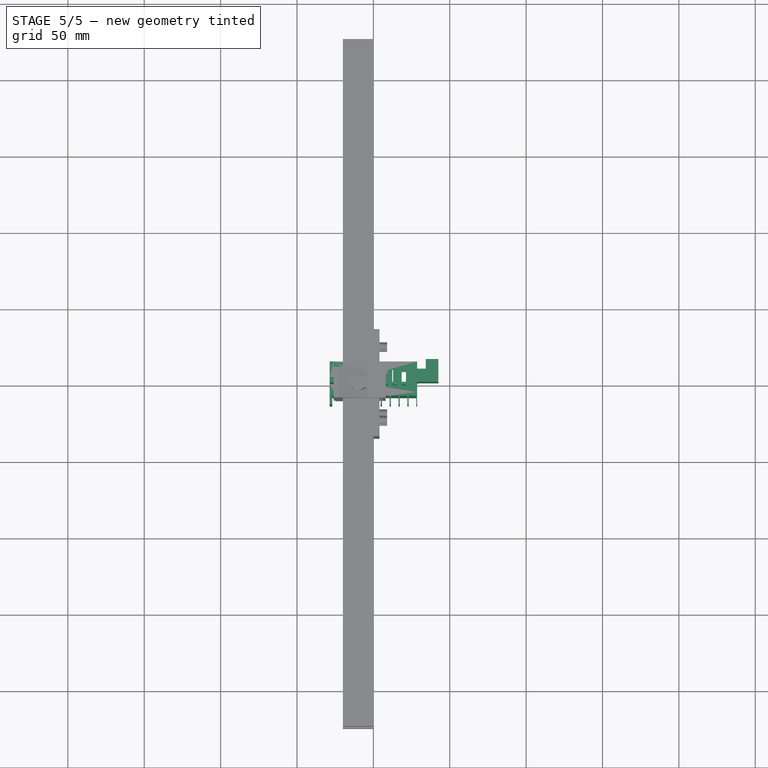
[diagram: stage 5 of 5 — top view after this stage's code; geometry added in this stage tinted green]
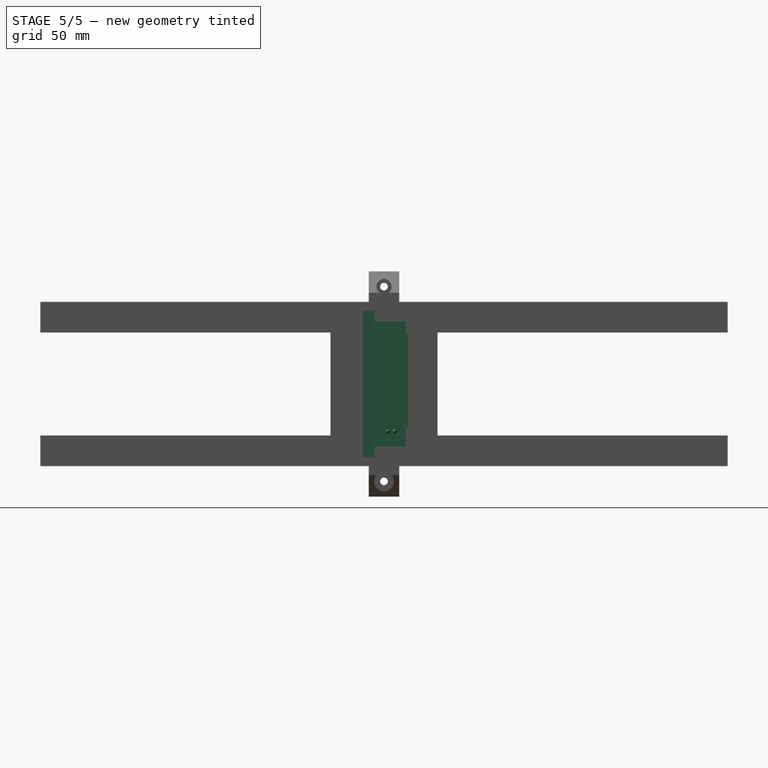
[diagram: stage 5 of 5 — right view after this stage's code; geometry added in this stage tinted green]
FEATURE [Part::Feature] Solid
  shape: bbox 50.5 x 1.8 x 78 mm, 6 faces (baked)
FEATURE [Part::Feature] Solid001
  shape: bbox 15.5 x 8.5 x 8.705 mm, 72 faces (baked)
FEATURE [Part::Feature] Solid002
  shape: bbox 71.2 x 29.8 x 96 mm, 458 faces (baked)
FEATURE [Part::Compound2] Compound  label="Driver-3.5A"
  Links = -> [Solid,Solid001,Solid002]
FEATURE [PartDesign::FeatureBase] Clone
  BaseFeature = -> Compound
FEATURE [PartDesign::Body] Body
  BaseFeature = -> Compound
  Group = -> [Clone]
  Origin = -> Origin
  Placement = pos=(0,35,0) rot=(0,0,1;0rad)
  Tip = -> Clone
FEATURE [PartDesign::FeatureBase] Clone001
  BaseFeature = -> Compound
FEATURE [PartDesign::Body] Body001
  BaseFeature = -> Compound
  Group = -> [Clone001]
  Origin = -> Origin001
  Placement = pos=(0,70,0) rot=(0,0,1;0rad)
  Tip = -> Clone001
FEATURE [PartDesign::FeatureBase] Clone002
  BaseFeature = -> Compound
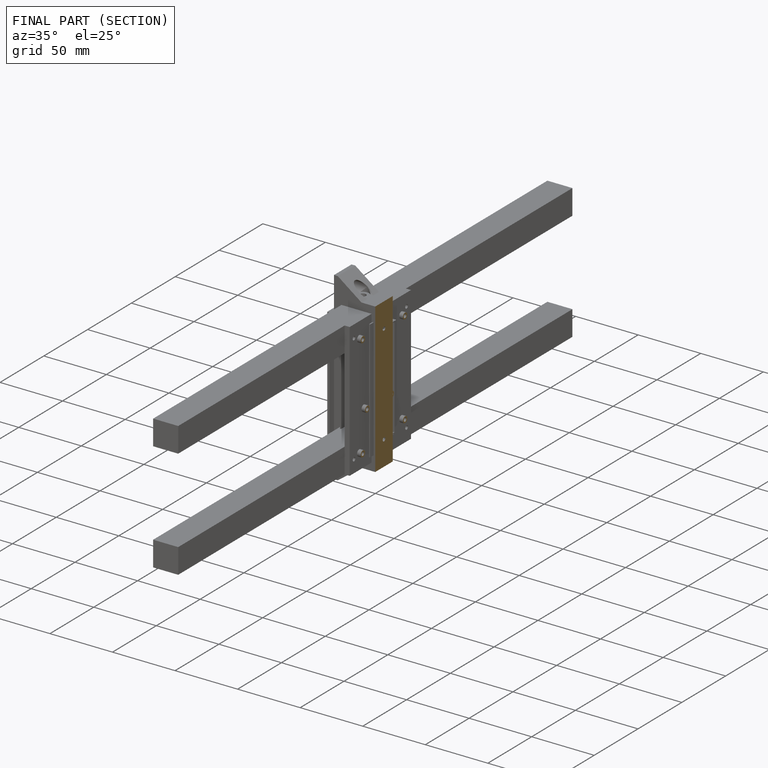
[diagram: finished part — half-section view (interior)]
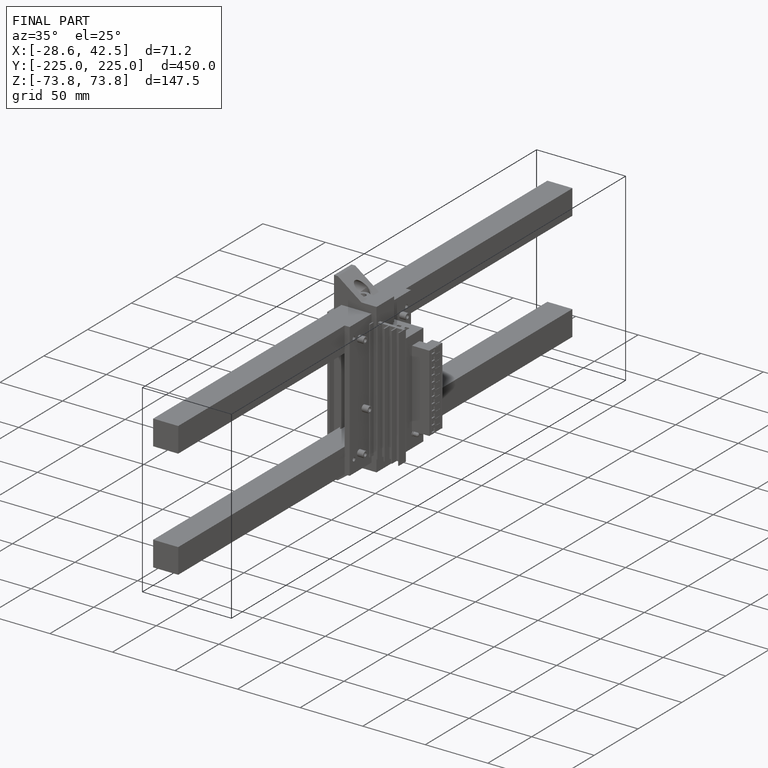
[diagram: finished part — iso view with bounding-box wireframe]
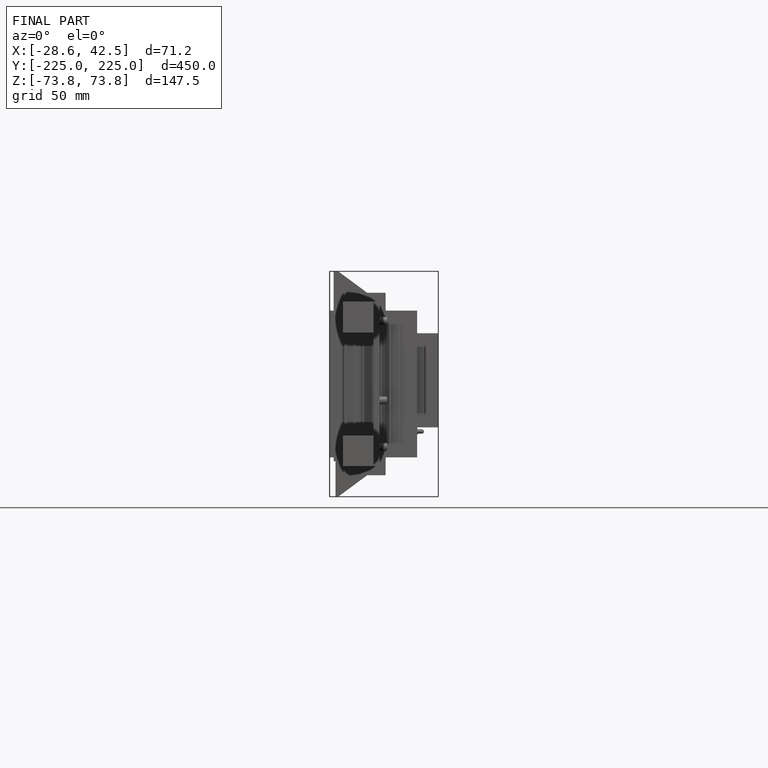
[diagram: finished part — front view with bounding-box wireframe]
